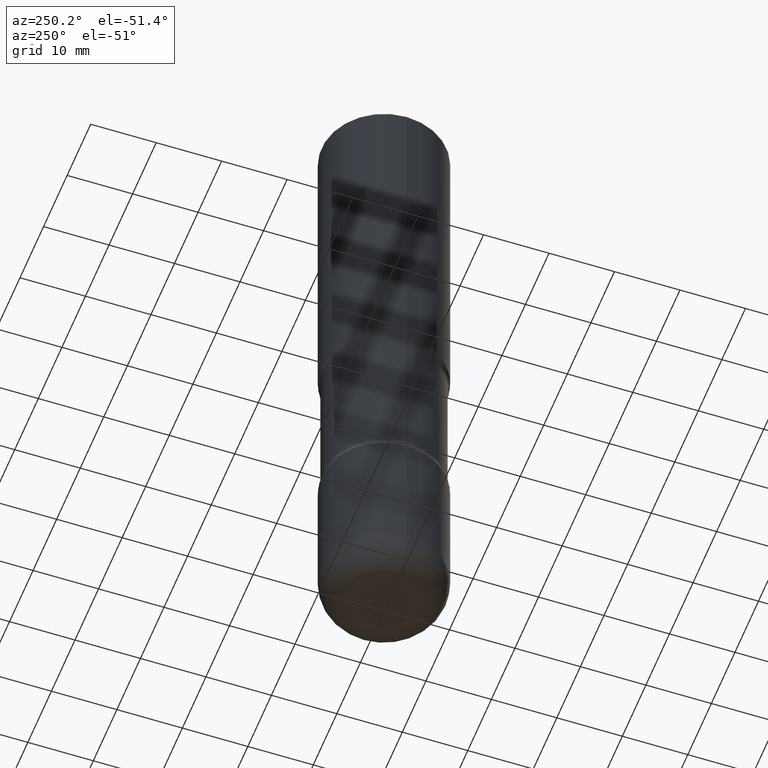
[diagram: clean part render]
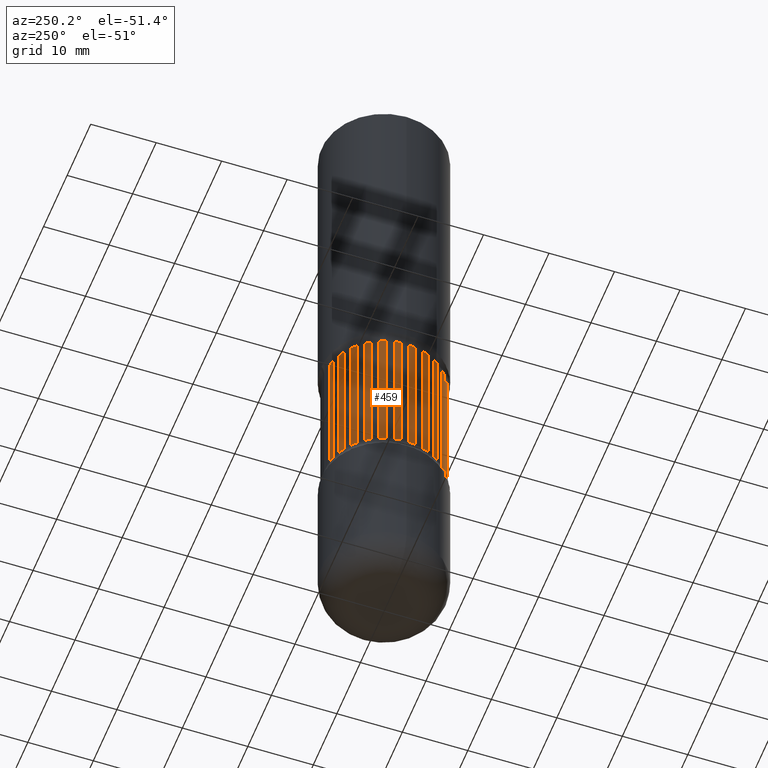
[diagram: same view with one face highlighted and labeled with its STEP entity id]
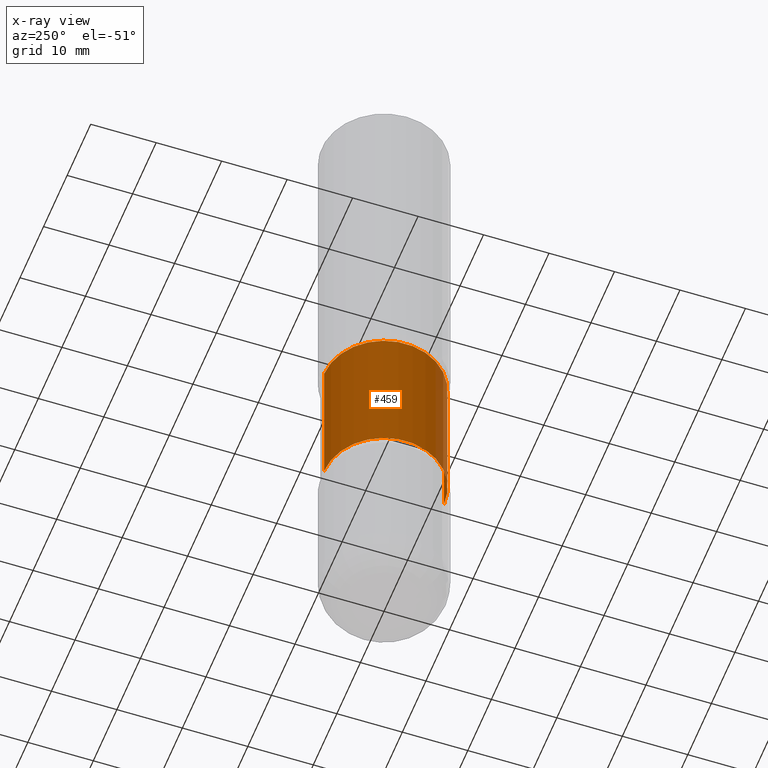
[diagram: x-ray of the same camera — body ghosted, the highlighted face saturated]
A machine part, auxiliary view. The second image highlights one B-rep face of the part: STEP entity #459.
The next image is the same camera in x-ray: the body ghosted, the highlighted face saturated — about 0% of this face is hidden behind the body in this view.
In plain terms, the highlighted cylindrical surface (partial cylindrical patch) has radius 9.144 mm, axis along (0, -0, -1).
Its self-contained STEP definition (entity closure, byte-faithful):
#31 = ORIENTED_EDGE ( 'NONE', *, *, #78, .F. ) ;
#37 = DIRECTION ( 'NONE',  ( 6.982962677686265133E-15, 1.000000000000000000, -3.794233324533699901E-15 ) ) ;
#46 = DIRECTION ( 'NONE',  ( 2.448377125465743738E-29, -3.487316460102062312E-15, -1.000000000000000000 ) ) ;
#78 = EDGE_CURVE ( 'NONE', #244, #480, #713, .T. ) ;
#150 = AXIS2_PLACEMENT_3D ( 'NONE', #621, #314, #802 ) ;
#151 = AXIS2_PLACEMENT_3D ( 'NONE', #157, #414, #37 ) ;
#157 = CARTESIAN_POINT ( 'NONE',  ( 5.033393630818961472E-29, -7.194175499492426092E-15, -2.059371710435190295 ) ) ;
#214 = ORIENTED_EDGE ( 'NONE', *, *, #717, .T. ) ;
#218 = EDGE_LOOP ( 'NONE', ( #31, #214, #476, #504 ) ) ;
#244 = VERTEX_POINT ( 'NONE', #748 ) ;
#253 = AXIS2_PLACEMENT_3D ( 'NONE', #370, #46, #558 ) ;
#267 = CARTESIAN_POINT ( 'NONE',  ( 2.513866563967127250E-15, 0.3599999999999897171, -2.940628289564811038 ) ) ;
#289 = VECTOR ( 'NONE', #734, 39.37007874015748143 ) ;
#293 = CARTESIAN_POINT ( 'NONE',  ( -2.521233014180964375E-15, -0.3600000000000102562, -2.940628289564808817 ) ) ;
#314 = DIRECTION ( 'NONE',  ( 2.448377125465743738E-29, -3.487316460102062312E-15, -1.000000000000000000 ) ) ;
#339 = CARTESIAN_POINT ( 'NONE',  ( -2.469779279197652928E-15, -0.3600000000000138645, -3.994849186499965565 ) ) ;
#349 = VECTOR ( 'NONE', #400, 39.37007874015748143 ) ;
#370 = CARTESIAN_POINT ( 'NONE',  ( 9.772172410070132051E-29, -1.394379795992991707E-14, -3.994849186499966898 ) ) ;
#400 = DIRECTION ( 'NONE',  ( 2.448377125465744019E-29, -3.487316460102062312E-15, -1.000000000000000000 ) ) ;
#414 = DIRECTION ( 'NONE',  ( 2.448377125465743738E-29, -3.487316460102062312E-15, -1.000000000000000000 ) ) ;
#419 = VERTEX_POINT ( 'NONE', #546 ) ;
#430 = FACE_OUTER_BOUND ( 'NONE', #218, .T. ) ;
#459 = ADVANCED_FACE ( 'NONE', ( #430 ), #677, .T. ) ;
#476 = ORIENTED_EDGE ( 'NONE', *, *, #693, .T. ) ;
#479 = CIRCLE ( 'NONE', #150, 0.3599999999999999867 ) ;
#480 = VERTEX_POINT ( 'NONE', #293 ) ;
#504 = ORIENTED_EDGE ( 'NONE', *, *, #651, .F. ) ;
#510 = VERTEX_POINT ( 'NONE', #267 ) ;
#546 = CARTESIAN_POINT ( 'NONE',  ( 2.513866563967105162E-15, 0.3599999999999926592, -2.059371710435191627 ) ) ;
#558 = DIRECTION ( 'NONE',  ( 6.982962677686265133E-15, 1.000000000000000000, -3.035386659626959526E-15 ) ) ;
#559 = CARTESIAN_POINT ( 'NONE',  ( 2.513866563967152493E-15, 0.3599999999999859979, -3.994849186499967786 ) ) ;
#621 = CARTESIAN_POINT ( 'NONE',  ( 7.191042080826115211E-29, -1.026739607346438549E-14, -2.940628289564810149 ) ) ;
#651 = EDGE_CURVE ( 'NONE', #480, #510, #479, .T. ) ;
#677 = CYLINDRICAL_SURFACE ( 'NONE', #253, 0.3599999999999999312 ) ;
#693 = EDGE_CURVE ( 'NONE', #419, #510, #782, .T. ) ;
#713 = LINE ( 'NONE', #339, #349 ) ;
#717 = EDGE_CURVE ( 'NONE', #244, #419, #726, .T. ) ;
#726 = CIRCLE ( 'NONE', #151, 0.3599999999999998757 ) ;
#734 = DIRECTION ( 'NONE',  ( 2.448377125465744019E-29, -3.487316460102062312E-15, -1.000000000000000000 ) ) ;
#748 = CARTESIAN_POINT ( 'NONE',  ( -2.521233014180988041E-15, -0.3600000000000070366, -2.059371710435188518 ) ) ;
#782 = LINE ( 'NONE', #559, #289 ) ;
#802 = DIRECTION ( 'NONE',  ( 6.982962677686265133E-15, 1.000000000000000000, -3.035386659626959132E-15 ) ) ;